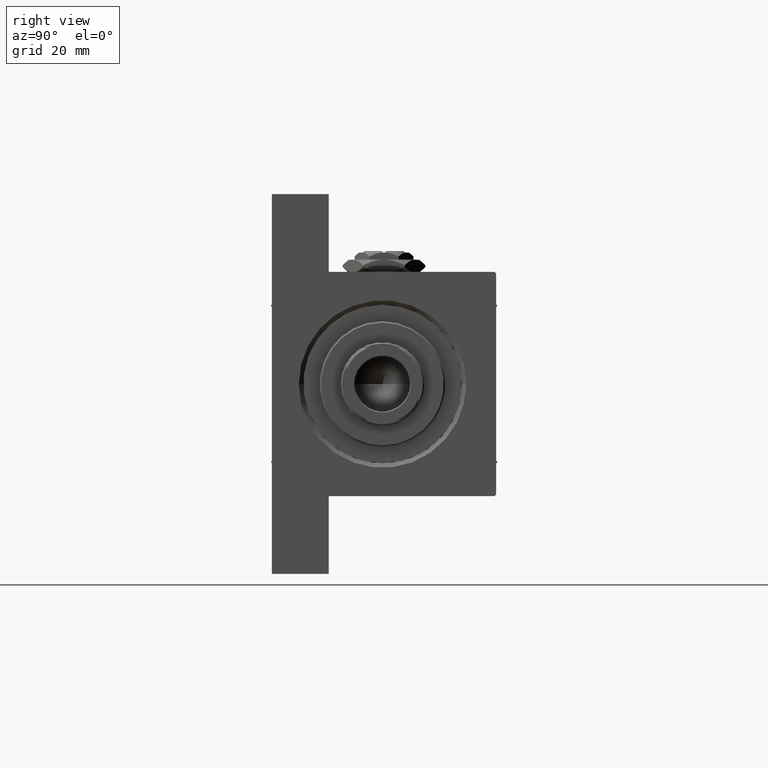
[diagram: clean part render]
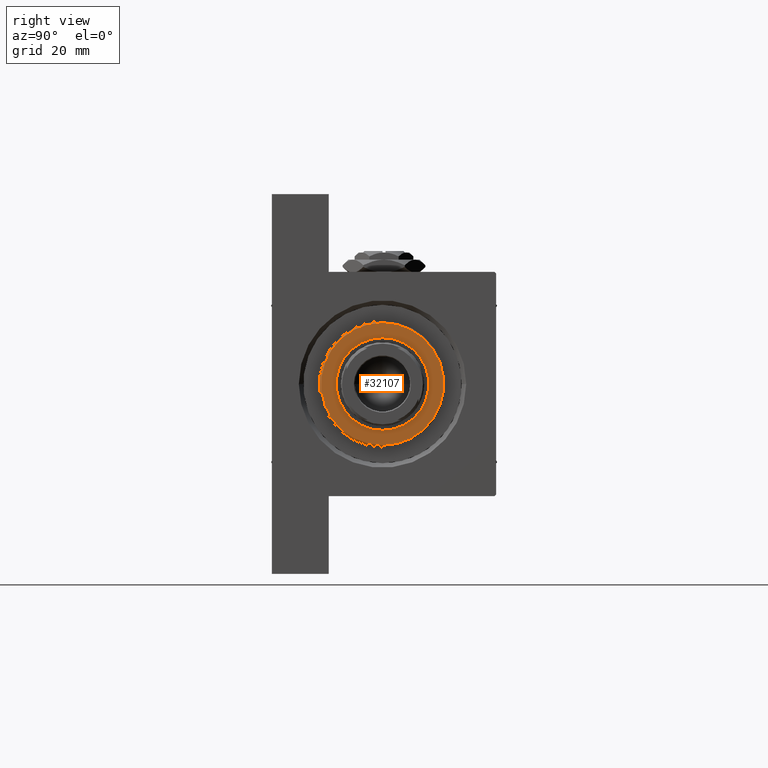
[diagram: same view with one face highlighted and labeled with its STEP entity id]
A machine part, right view. The second image highlights one B-rep face of the part: STEP entity #32107.
In plain terms, the highlighted planar face has unit normal (1, 0, 0).
Its self-contained STEP definition (entity closure, byte-faithful):
#2228 = ORIENTED_EDGE ( 'NONE', *, *, #17118, .T. ) ;
#2716 = DIRECTION ( 'NONE',  ( 0.000000000000000000, 0.000000000000000000, 1.000000000000000000 ) ) ;
#2728 = CIRCLE ( 'NONE', #9133, 15.50000000000000000 ) ;
#4548 = CARTESIAN_POINT ( 'NONE',  ( 0.000000000000000000, 0.000000000000000000, 37.69999999999999574 ) ) ;
#4604 = CARTESIAN_POINT ( 'NONE',  ( 0.000000000000000000, 0.000000000000000000, 37.69999999999999574 ) ) ;
#5301 = DIRECTION ( 'NONE',  ( 1.000000000000000000, 0.000000000000000000, 0.000000000000000000 ) ) ;
#6151 = ORIENTED_EDGE ( 'NONE', *, *, #9581, .T. ) ;
#6286 = CARTESIAN_POINT ( 'NONE',  ( -15.50000000000000000, 1.898202538678397557E-15, 37.69999999999999574 ) ) ;
#6819 = AXIS2_PLACEMENT_3D ( 'NONE', #4548, #20106, #5301 ) ;
#7706 = CARTESIAN_POINT ( 'NONE',  ( 0.000000000000000000, 0.000000000000000000, 37.69999999999999574 ) ) ;
#8519 = CARTESIAN_POINT ( 'NONE',  ( -20.49999999999999645, 0.000000000000000000, 37.69999999999999574 ) ) ;
#9110 = DIRECTION ( 'NONE',  ( 1.000000000000000000, 0.000000000000000000, 0.000000000000000000 ) ) ;
#9133 = AXIS2_PLACEMENT_3D ( 'NONE', #7706, #2716, #26284 ) ;
#9269 = EDGE_CURVE ( 'NONE', #16365, #26060, #40577, .T. ) ;
#9581 = EDGE_CURVE ( 'NONE', #17224, #18440, #12556, .T. ) ;
#10146 = AXIS2_PLACEMENT_3D ( 'NONE', #34145, #18624, #49428 ) ;
#12556 = CIRCLE ( 'NONE', #10146, 20.49999999999999645 ) ;
#13323 = DIRECTION ( 'NONE',  ( 1.000000000000000000, 0.000000000000000000, -0.000000000000000000 ) ) ;
#16365 = VERTEX_POINT ( 'NONE', #6286 ) ;
#17118 = EDGE_CURVE ( 'NONE', #18440, #17224, #46028, .T. ) ;
#17224 = VERTEX_POINT ( 'NONE', #38117 ) ;
#17346 = PLANE ( 'NONE',  #30312 ) ;
#17398 = AXIS2_PLACEMENT_3D ( 'NONE', #4604, #43463, #9110 ) ;
#18289 = ORIENTED_EDGE ( 'NONE', *, *, #18649, .F. ) ;
#18440 = VERTEX_POINT ( 'NONE', #8519 ) ;
#18624 = DIRECTION ( 'NONE',  ( 0.000000000000000000, 0.000000000000000000, 1.000000000000000000 ) ) ;
#18649 = EDGE_CURVE ( 'NONE', #26060, #16365, #2728, .T. ) ;
#20106 = DIRECTION ( 'NONE',  ( 0.000000000000000000, 0.000000000000000000, 1.000000000000000000 ) ) ;
#21952 = EDGE_LOOP ( 'NONE', ( #18289, #29932 ) ) ;
#26060 = VERTEX_POINT ( 'NONE', #49412 ) ;
#26284 = DIRECTION ( 'NONE',  ( 1.000000000000000000, 0.000000000000000000, 0.000000000000000000 ) ) ;
#26976 = EDGE_LOOP ( 'NONE', ( #2228, #6151 ) ) ;
#28856 = CARTESIAN_POINT ( 'NONE',  ( 0.000000000000000000, 0.000000000000000000, 37.69999999999999574 ) ) ;
#29932 = ORIENTED_EDGE ( 'NONE', *, *, #9269, .F. ) ;
#30312 = AXIS2_PLACEMENT_3D ( 'NONE', #28856, #32619, #13323 ) ;
#32107 = ADVANCED_FACE ( 'NONE', ( #36382, #43408 ), #17346, .T. ) ;
#32619 = DIRECTION ( 'NONE',  ( 0.000000000000000000, 0.000000000000000000, 1.000000000000000000 ) ) ;
#34145 = CARTESIAN_POINT ( 'NONE',  ( 0.000000000000000000, 0.000000000000000000, 37.69999999999999574 ) ) ;
#36382 = FACE_BOUND ( 'NONE', #21952, .T. ) ;
#38117 = CARTESIAN_POINT ( 'NONE',  ( 20.49999999999999645, 2.541142108230757480E-15, 37.69999999999999574 ) ) ;
#40577 = CIRCLE ( 'NONE', #17398, 15.50000000000000000 ) ;
#43408 = FACE_OUTER_BOUND ( 'NONE', #26976, .T. ) ;
#43463 = DIRECTION ( 'NONE',  ( 0.000000000000000000, 0.000000000000000000, 1.000000000000000000 ) ) ;
#46028 = CIRCLE ( 'NONE', #6819, 20.49999999999999645 ) ;
#49412 = CARTESIAN_POINT ( 'NONE',  ( 15.50000000000000000, 0.000000000000000000, 37.69999999999999574 ) ) ;
#49428 = DIRECTION ( 'NONE',  ( 1.000000000000000000, 0.000000000000000000, 0.000000000000000000 ) ) ;